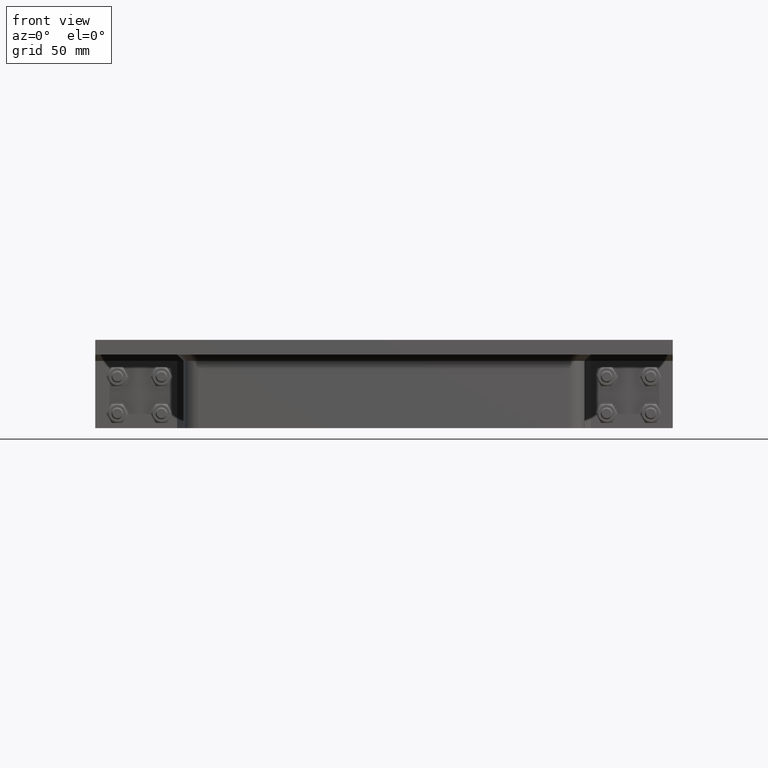
[diagram: clean part render]
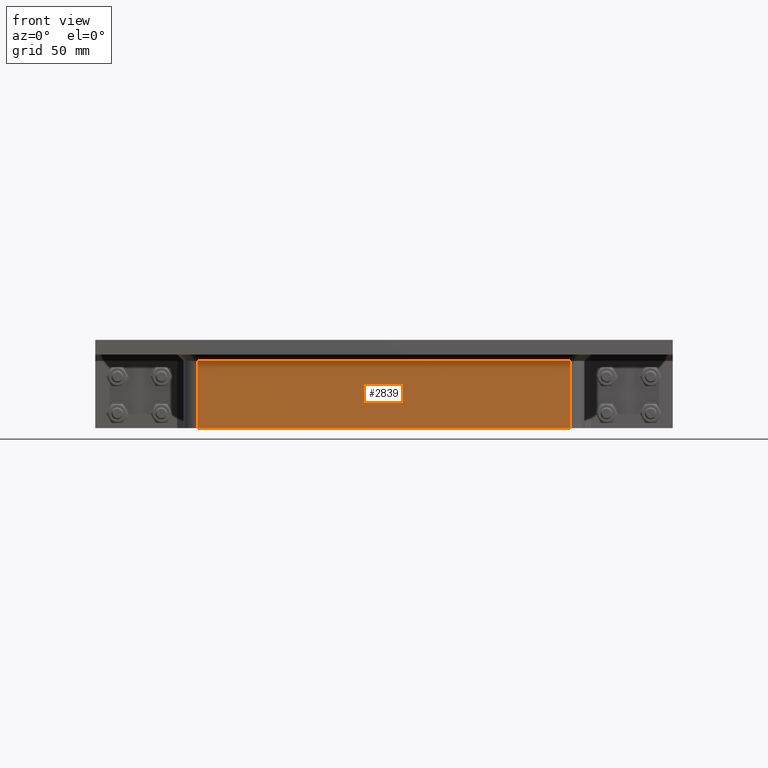
[diagram: same view with one face highlighted and labeled with its STEP entity id]
A machine part, front view. The second image highlights one B-rep face of the part: STEP entity #2839.
In plain terms, the highlighted planar face has unit normal (0, -1, 0).
Its self-contained STEP definition (entity closure, byte-faithful):
#510=FACE_OUTER_BOUND('',#703,.T.);
#703=EDGE_LOOP('',(#2211,#2212,#2213,#2214));
#883=LINE('',#4373,#1104);
#933=LINE('',#4536,#1154);
#960=LINE('',#4605,#1181);
#962=LINE('',#4611,#1183);
#1104=VECTOR('',#3515,10.);
#1154=VECTOR('',#3673,10.);
#1181=VECTOR('',#3754,10.);
#1183=VECTOR('',#3764,10.);
#1321=VERTEX_POINT('',#4365);
#1323=VERTEX_POINT('',#4371);
#1381=VERTEX_POINT('',#4533);
#1382=VERTEX_POINT('',#4535);
#1574=EDGE_CURVE('',#1323,#1321,#883,.T.);
#1655=EDGE_CURVE('',#1381,#1382,#933,.T.);
#1691=EDGE_CURVE('',#1321,#1381,#960,.T.);
#1693=EDGE_CURVE('',#1323,#1382,#962,.T.);
#2211=ORIENTED_EDGE('',*,*,#1574,.F.);
#2212=ORIENTED_EDGE('',*,*,#1693,.T.);
#2213=ORIENTED_EDGE('',*,*,#1655,.F.);
#2214=ORIENTED_EDGE('',*,*,#1691,.F.);
#2729=PLANE('',#3256);
#2839=ADVANCED_FACE('',(#510),#2729,.T.);
#3256=AXIS2_PLACEMENT_3D('',#4612,#3765,#3766);
#3515=DIRECTION('',(1.,0.,0.));
#3673=DIRECTION('',(-1.,0.,0.));
#3754=DIRECTION('',(0.,0.,-1.));
#3764=DIRECTION('',(0.,0.,-1.));
#3765=DIRECTION('center_axis',(0.,-1.,0.));
#3766=DIRECTION('ref_axis',(-1.,0.,0.));
#4365=CARTESIAN_POINT('',(126.5,-89.75,-14.3));
#4371=CARTESIAN_POINT('',(-126.5,-89.75,-14.3));
#4373=CARTESIAN_POINT('',(63.25,-89.75,-14.3));
#4533=CARTESIAN_POINT('',(126.5,-89.75,-60.));
#4535=CARTESIAN_POINT('',(-126.5,-89.75,-60.));
#4536=CARTESIAN_POINT('',(-126.5,-89.75,-60.));
#4605=CARTESIAN_POINT('',(126.5,-89.75,0.));
#4611=CARTESIAN_POINT('',(-126.5,-89.75,0.));
#4612=CARTESIAN_POINT('Origin',(126.5,-89.75,0.));